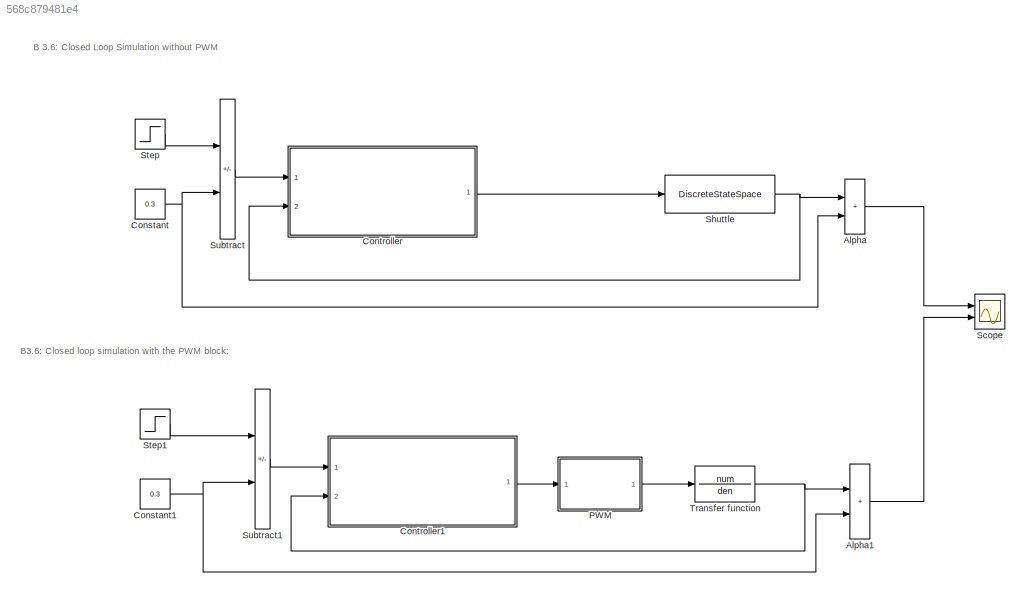
MODEL slx_568c879481e4
KIND model
CONFIG AbsTol = auto
CONFIG EnableMultiTasking = off
CONFIG FixedStep = auto
CONFIG MaxStep = auto
CONFIG MinStep = auto
CONFIG PreLoadFcn = main;
CONFIG RelTol = 1e-3
CONFIG SampleTimeConstraint = Unconstrained
CONFIG SolverName = ode45
CONFIG StartTime = 0.0
CONFIG StopTime = 10.0
BLOCK [Sum] Alpha
  IconShape = rectangular
  Ports = [2, 1]
BLOCK [Sum] Alpha1
  IconShape = rectangular
  Ports = [2, 1]
BLOCK [Constant] Constant
  Value = 0.3
BLOCK [Constant] Constant1
  Value = 0.3
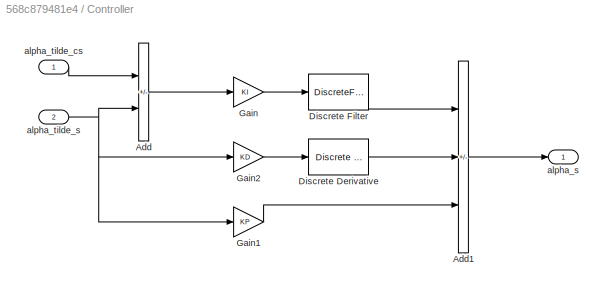
BLOCK [SubSystem] Controller
  Ports = [2, 1]
  RequestExecContextInheritance = off
BLOCK [Sum] Controller/Add
  IconShape = rectangular
  Inputs = +-
  Ports = [2, 1]
BLOCK [Sum] Controller/Add1
  IconShape = rectangular
  Inputs = +--
  Ports = [3, 1]
BLOCK [Reference] Controller/Discrete Derivative  REF=simulink/Discrete/Discrete Derivative
  Ports = [1, 1]
  SourceBlock = simulink/Discrete/Discrete Derivative
  SourceProductBaseCode = SL
  SourceType = Discrete Derivative
BLOCK [DiscreteFilter] Controller/Discrete Filter
  Denominator = [1 -1]
  InputPortMap = u0
  Numerator = [ts]
  Ports = [1, 1]
BLOCK [Gain] Controller/Gain
  Gain = KI
BLOCK [Gain] Controller/Gain1
  Gain = KP
BLOCK [Gain] Controller/Gain2
  Gain = KD
BLOCK [Outport] Controller/alpha_s
  VectorParamsAs1DForOutWhenUnconnected = off
BLOCK [Inport] Controller/alpha_tilde_cs
BLOCK [Inport] Controller/alpha_tilde_s
  Port = 2
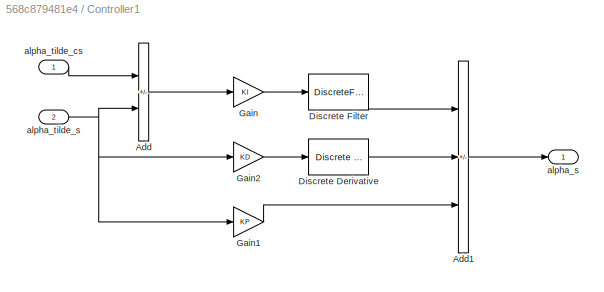
BLOCK [SubSystem] Controller1
  Ports = [2, 1]
  RequestExecContextInheritance = off
BLOCK [Sum] Controller1/Add
  IconShape = rectangular
  Inputs = +-
  Ports = [2, 1]
BLOCK [Sum] Controller1/Add1
  IconShape = rectangular
  Inputs = +--
  Ports = [3, 1]
BLOCK [Reference] Controller1/Discrete Derivative  REF=simulink/Discrete/Discrete Derivative
  Ports = [1, 1]
  SourceBlock = simulink/Discrete/Discrete Derivative
  SourceProductBaseCode = SL
  SourceType = Discrete Derivative
BLOCK [DiscreteFilter] Controller1/Discrete Filter
  Denominator = [1 -1]
  InputPortMap = u0
  Numerator = [ts]
  Ports = [1, 1]
BLOCK [Gain] Controller1/Gain
  Gain = KI
BLOCK [Gain] Controller1/Gain1
  Gain = KP
BLOCK [Gain] Controller1/Gain2
  Gain = KD
BLOCK [Outport] Controller1/alpha_s
  VectorParamsAs1DForOutWhenUnconnected = off
BLOCK [Inport] Controller1/alpha_tilde_cs
BLOCK [Inport] Controller1/alpha_tilde_s
  Port = 2
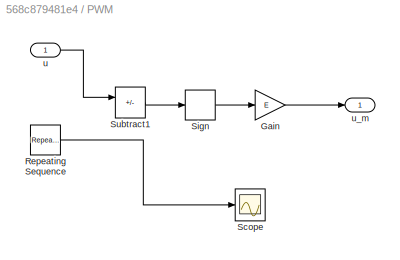
BLOCK [SubSystem] PWM
  Ports = [1, 1]
  RequestExecContextInheritance = off
BLOCK [Gain] PWM/Gain
  Gain = E
BLOCK [Reference] PWM/Repeating Sequence  REF=simulink/Sources/Repeating
Sequence
  Ports = [0, 1]
  SourceBlock = simulink/Sources/Repeating\nSequence
  SourceProductBaseCode = SL
  SourceType = Repeating table
BLOCK [Scope] PWM/Scope
  Floating = off
  NumInputPorts = 1
  Ports = [1]
  ScopeSpecificationString = Simulink.scopes.TimeScopeBlockCfg('CurrentConfiguration', extmgr.ConfigurationSet(extmgr.Configuration('Core','General UI',true),extmgr.Configuration('Core','Source UI',true),extmgr.Configuration('Sources','WiredSimulink',true,'DataLoggingSaveFormat','Array','DataLoggingLimitDataPoints',true,'DataLoggingDecimation','1','DataLoggingVariableName','ScopeData1'),extmgr.Configuration('Visuals','Time Do...<+1642ch>
BLOCK [Signum] PWM/Sign
BLOCK [Sum] PWM/Subtract1
  IconShape = rectangular
  Inputs = +-
  Ports = [2, 1]
BLOCK [Inport] PWM/u
BLOCK [Outport] PWM/u_m
  VectorParamsAs1DForOutWhenUnconnected = off
BLOCK [Scope] Scope
  Floating = off
  NumInputPorts = 2
  Ports = [2]
  ScopeSpecificationString = Simulink.scopes.TimeScopeBlockCfg('CurrentConfiguration', extmgr.ConfigurationSet(extmgr.Configuration('Core','General UI',true),extmgr.Configuration('Core','Source UI',true),extmgr.Configuration('Sources','WiredSimulink',true,'SampleTime','ts'),extmgr.Configuration('Visuals','Time Domain',true,'SerializedDisplays',{struct('MinYLimReal','0.25497','MaxYLimReal','0.30514','YLabelReal','','MinYLimMag...<+1376ch>
BLOCK [DiscreteStateSpace] Shuttle 
  A = atilde
  B = btilde
  C = C
  D = D
  SampleTime = ts
BLOCK [Step] Step
  After = 0.27
  Before = 0.3
  SampleTime = ts
BLOCK [Step] Step1
  After = 0.27
  Before = 0.3
  SampleTime = ts
BLOCK [Sum] Subtract
  IconShape = rectangular
  Inputs = +-
  Ports = [2, 1]
BLOCK [Sum] Subtract1
  IconShape = rectangular
  Inputs = +-
  Ports = [2, 1]
BLOCK [TransferFcn] Transfer function 
  Denominator = den
  Numerator = num
ANNOTATION (root): B 3.6: Closed Loop Simulation without PWM
ANNOTATION (root): B3.6: Closed loop simulation with the PWM block:
LINE Alpha1:1 -> Scope:2
LINE Alpha:1 -> Scope:1
NET Constant1:1 -> Alpha1:2, Subtract1:2
NET Constant:1 -> Alpha:2, Subtract:2
LINE Controller/Add1:1 -> Controller/alpha_s:1
LINE Controller/Add:1 -> Controller/Gain:1
LINE Controller/Discrete Derivative:1 -> Controller/Add1:2
LINE Controller/Discrete Filter:1 -> Controller/Add1:1
LINE Controller/Gain1:1 -> Controller/Add1:3
LINE Controller/Gain2:1 -> Controller/Discrete Derivative:1
LINE Controller/Gain:1 -> Controller/Discrete Filter:1
LINE Controller/alpha_tilde_cs:1 -> Controller/Add:1
NET Controller/alpha_tilde_s:1 -> Controller/Add:2, Controller/Gain1:1, Controller/Gain2:1
LINE Controller1/Add1:1 -> Controller1/alpha_s:1
LINE Controller1/Add:1 -> Controller1/Gain:1
LINE Controller1/Discrete Derivative:1 -> Controller1/Add1:2
LINE Controller1/Discrete Filter:1 -> Controller1/Add1:1
LINE Controller1/Gain1:1 -> Controller1/Add1:3
LINE Controller1/Gain2:1 -> Controller1/Discrete Derivative:1
LINE Controller1/Gain:1 -> Controller1/Discrete Filter:1
LINE Controller1/alpha_tilde_cs:1 -> Controller1/Add:1
NET Controller1/alpha_tilde_s:1 -> Controller1/Add:2, Controller1/Gain1:1, Controller1/Gain2:1
LINE Controller1:1 -> PWM:1
LINE Controller:1 -> Shuttle :1
LINE PWM/Gain:1 -> PWM/u_m:1
LINE PWM/Repeating Sequence:1 -> PWM/Scope:1
LINE PWM/Sign:1 -> PWM/Gain:1
LINE PWM/Subtract1:1 -> PWM/Sign:1
LINE PWM/u:1 -> PWM/Subtract1:1
LINE PWM:1 -> Transfer function :1
NET Shuttle :1 -> Alpha:1, Controller:2
LINE Step1:1 -> Subtract1:1
LINE Step:1 -> Subtract:1
LINE Subtract1:1 -> Controller1:1
LINE Subtract:1 -> Controller:1
NET Transfer function :1 -> Alpha1:1, Controller1:2
note: NET lines group one-source signal fan-out (src -> all destinations, sorted); 1:1 wires keep LINE
